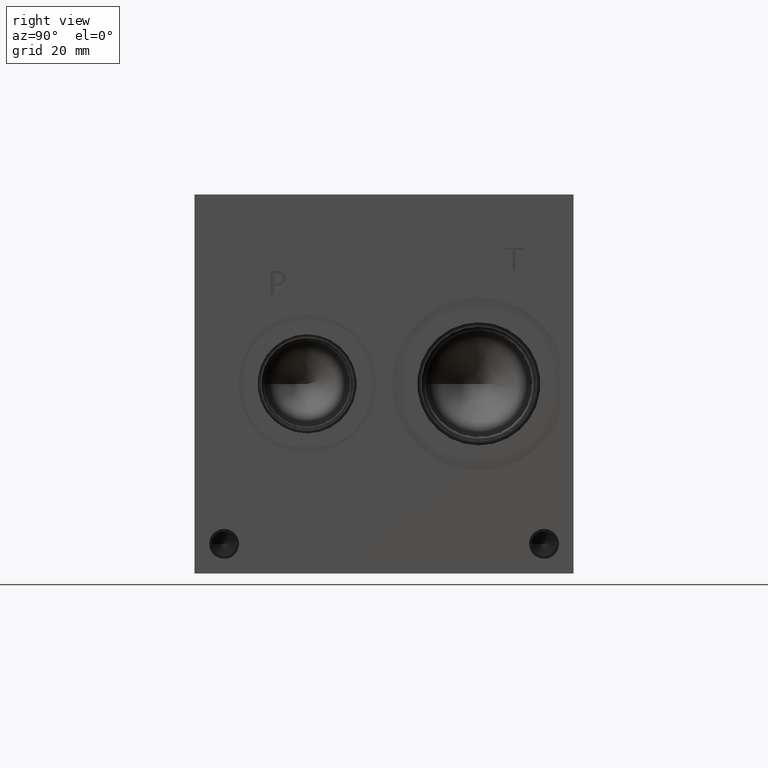
[diagram: clean part render]
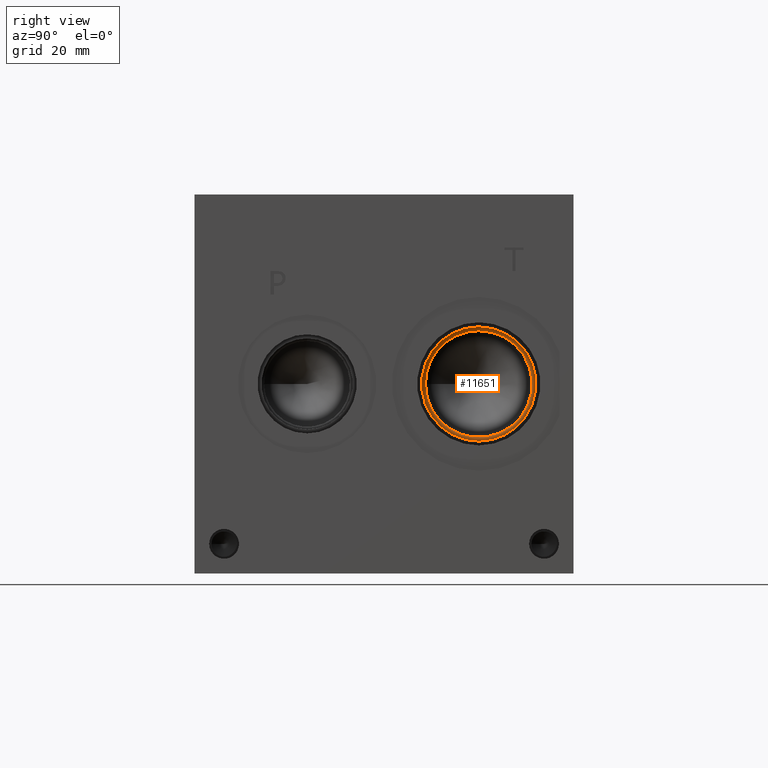
[diagram: same view with one face highlighted and labeled with its STEP entity id]
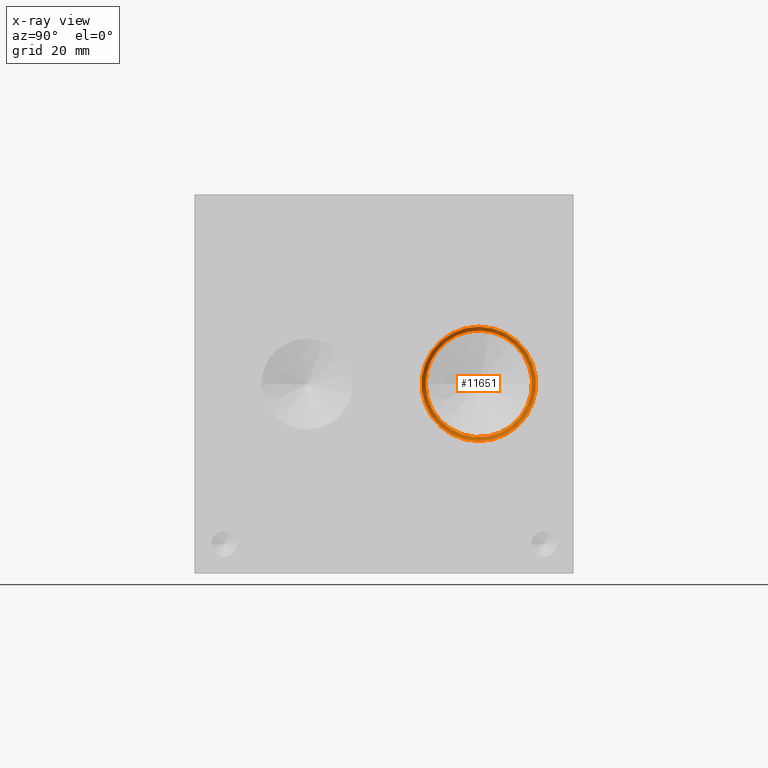
[diagram: x-ray of the same camera — body ghosted, the highlighted face saturated]
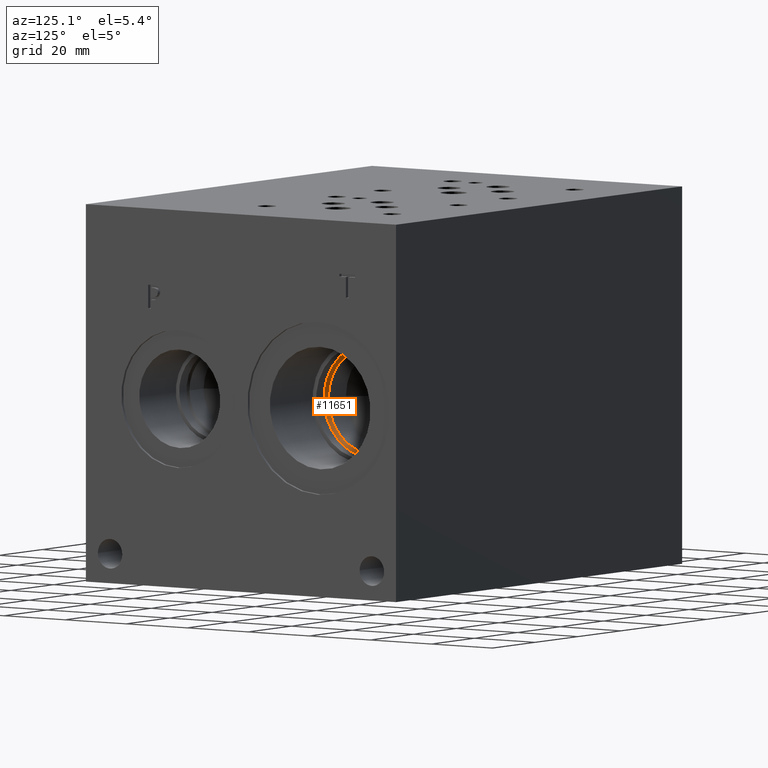
[diagram: same view with one face highlighted and labeled with its STEP entity id]
A machine part, right view. The second image highlights one B-rep face of the part: STEP entity #11651.
The next image is the same camera in x-ray: the body ghosted, the highlighted face saturated — about 0% of this face is hidden behind the body in this view.
A second angle (auxiliary view) of the same face is appended — the face is thin or edge-on in the first view.
In plain terms, the highlighted conical surface has half-angle 60 deg.
Its self-contained STEP definition (entity closure, byte-faithful):
#27=CONICAL_SURFACE('',#12236,15.3162,1.04719755085197);
#371=CIRCLE('',#12219,14.2875);
#372=CIRCLE('',#12220,14.2875);
#381=CIRCLE('',#12234,15.3162);
#382=CIRCLE('',#12235,15.3162);
#1426=FACE_OUTER_BOUND('',#2096,.T.);
#2096=EDGE_LOOP('',(#9893,#9894,#9895,#9896,#9897,#9898));
#3222=LINE('',#19754,#4298);
#4298=VECTOR('',#14440,15.3162);
#5323=VERTEX_POINT('',#19720);
#5324=VERTEX_POINT('',#19721);
#5333=VERTEX_POINT('',#19748);
#5334=VERTEX_POINT('',#19750);
#6892=EDGE_CURVE('',#5323,#5324,#371,.T.);
#6894=EDGE_CURVE('',#5324,#5323,#372,.T.);
#6906=EDGE_CURVE('',#5333,#5334,#381,.T.);
#6907=EDGE_CURVE('',#5334,#5333,#382,.T.);
#6908=EDGE_CURVE('',#5333,#5324,#3222,.T.);
#9893=ORIENTED_EDGE('',*,*,#6907,.F.);
#9894=ORIENTED_EDGE('',*,*,#6906,.F.);
#9895=ORIENTED_EDGE('',*,*,#6908,.T.);
#9896=ORIENTED_EDGE('',*,*,#6894,.T.);
#9897=ORIENTED_EDGE('',*,*,#6892,.T.);
#9898=ORIENTED_EDGE('',*,*,#6908,.F.);
#11651=ADVANCED_FACE('',(#1426),#27,.F.);
#12219=AXIS2_PLACEMENT_3D('',#19722,#14400,#14401);
#12220=AXIS2_PLACEMENT_3D('',#19724,#14403,#14404);
#12234=AXIS2_PLACEMENT_3D('',#19751,#14434,#14435);
#12235=AXIS2_PLACEMENT_3D('',#19752,#14436,#14437);
#12236=AXIS2_PLACEMENT_3D('',#19753,#14438,#14439);
#14400=DIRECTION('center_axis',(-1.,0.,0.));
#14401=DIRECTION('ref_axis',(0.,1.,0.));
#14403=DIRECTION('center_axis',(-1.,0.,0.));
#14404=DIRECTION('ref_axis',(0.,1.,0.));
#14434=DIRECTION('center_axis',(-1.,0.,0.));
#14435=DIRECTION('ref_axis',(0.,0.,1.));
#14436=DIRECTION('center_axis',(-1.,0.,0.));
#14437=DIRECTION('ref_axis',(0.,0.,1.));
#14438=DIRECTION('center_axis',(1.,0.,0.));
#14439=DIRECTION('ref_axis',(0.,0.,-1.));
#14440=DIRECTION('',(-0.500000000298456,-1.06057523851388E-16,-0.866025403612125));
#19720=CARTESIAN_POINT('',(108.451891977612,61.9125,50.8));
#19721=CARTESIAN_POINT('',(108.451891977612,76.2,65.0875));
#19722=CARTESIAN_POINT('Origin',(108.451891977612,76.2,50.8));
#19724=CARTESIAN_POINT('Origin',(108.451891977612,76.2,50.8));
#19748=CARTESIAN_POINT('',(109.0458122,76.2,66.1162));
#19750=CARTESIAN_POINT('',(109.0458122,76.2,35.4838));
#19751=CARTESIAN_POINT('Origin',(109.0458122,76.2,50.8));
#19752=CARTESIAN_POINT('Origin',(109.0458122,76.2,50.8));
#19753=CARTESIAN_POINT('Origin',(109.0458122,76.2,50.8));
#19754=CARTESIAN_POINT('',(109.0458122,76.2,66.1162));